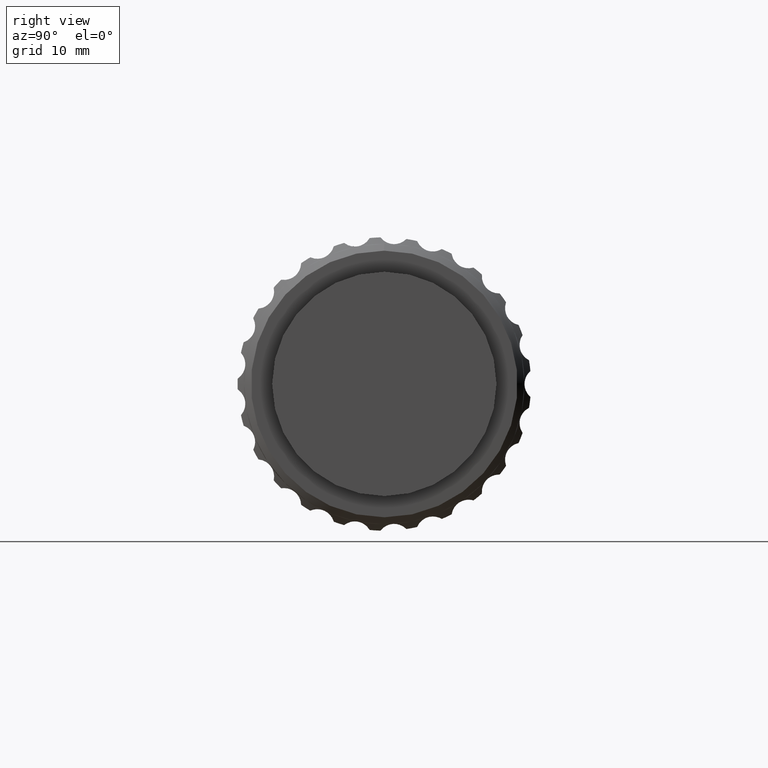
[diagram: clean part render]
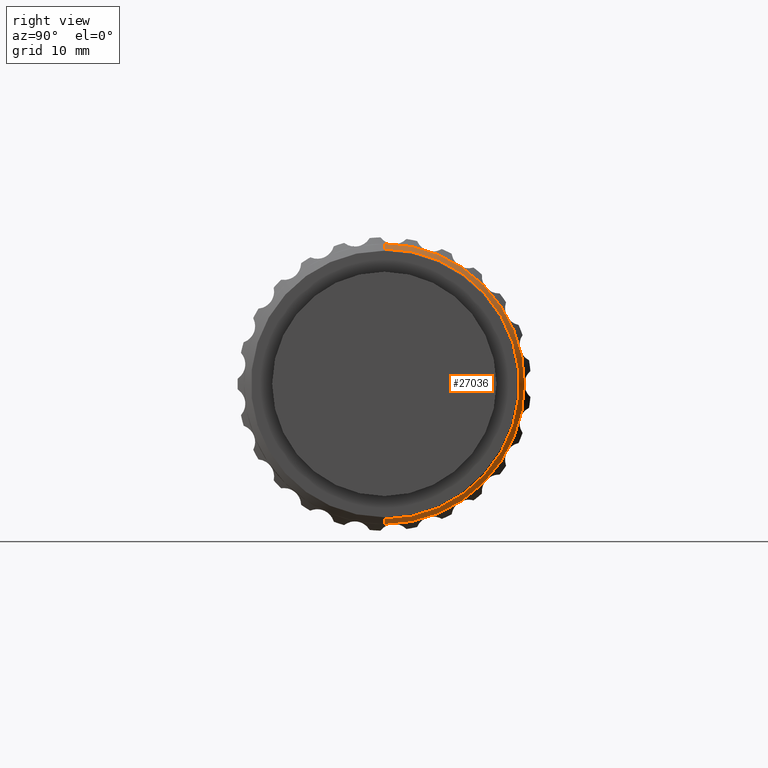
[diagram: same view with one face highlighted and labeled with its STEP entity id]
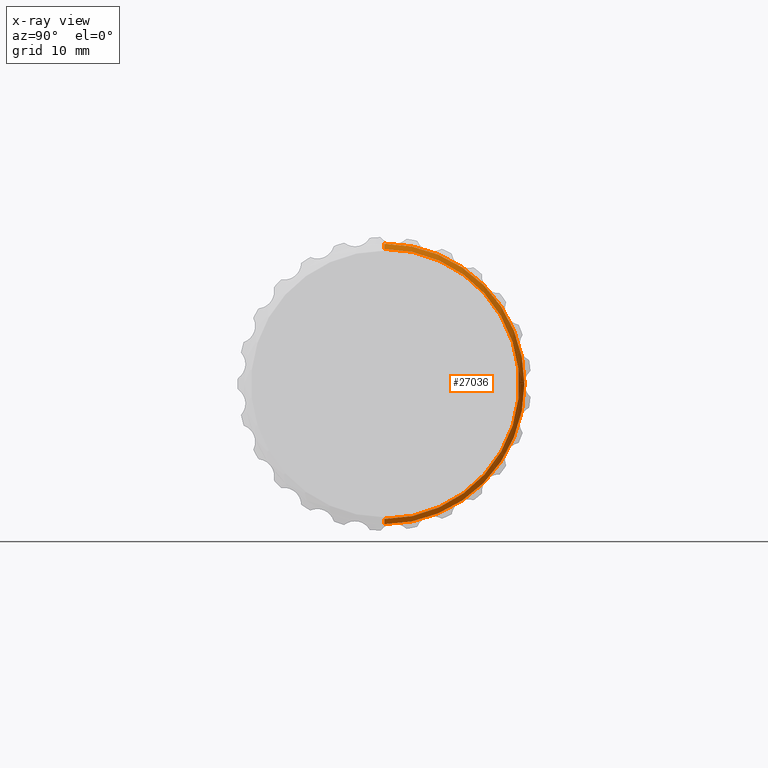
[diagram: x-ray of the same camera — body ghosted, the highlighted face saturated]
A machine part, right view. The second image highlights one B-rep face of the part: STEP entity #27036.
The next image is the same camera in x-ray: the body ghosted, the highlighted face saturated — about 0% of this face is hidden behind the body in this view.
In plain terms, the highlighted conical surface has half-angle 45 deg.
Its self-contained STEP definition (entity closure, byte-faithful):
#1356 = DIRECTION ( 'NONE',  ( 0.000000000000000000, 0.000000000000000000, 1.000000000000000000 ) ) ;
#4101 = DIRECTION ( 'NONE',  ( -0.7071067811865516806, 8.659560562354883554E-17, -0.7071067811865434649 ) ) ;
#5892 = VERTEX_POINT ( 'NONE', #14281 ) ;
#6068 = DIRECTION ( 'NONE',  ( -1.000000000000000000, -0.000000000000000000, -0.000000000000000000 ) ) ;
#9057 = LINE ( 'NONE', #50694, #27049 ) ;
#13379 = LINE ( 'NONE', #36041, #24397 ) ;
#13872 = VERTEX_POINT ( 'NONE', #15282 ) ;
#14281 = CARTESIAN_POINT ( 'NONE',  ( 62.54999999999998295, 0.000000000000000000, 16.25000000000000000 ) ) ;
#14939 = DIRECTION ( 'NONE',  ( -0.7071067811865516806, 0.000000000000000000, 0.7071067811865434649 ) ) ;
#15282 = CARTESIAN_POINT ( 'NONE',  ( 63.14999999999999858, 1.916572240665607987E-15, -15.65000000000000036 ) ) ;
#15589 = EDGE_CURVE ( 'NONE', #13872, #30799, #9057, .T. ) ;
#16060 = CARTESIAN_POINT ( 'NONE',  ( 62.54999999999998295, 1.990051048614449313E-15, -16.25000000000000000 ) ) ;
#17205 = EDGE_CURVE ( 'NONE', #21670, #5892, #13379, .T. ) ;
#17413 = AXIS2_PLACEMENT_3D ( 'NONE', #27450, #6068, #52394 ) ;
#19425 = EDGE_LOOP ( 'NONE', ( #25814, #29646, #29580, #21720 ) ) ;
#20057 = AXIS2_PLACEMENT_3D ( 'NONE', #44954, #31366, #23575 ) ;
#21670 = VERTEX_POINT ( 'NONE', #49162 ) ;
#21720 = ORIENTED_EDGE ( 'NONE', *, *, #17205, .F. ) ;
#23575 = DIRECTION ( 'NONE',  ( 0.000000000000000000, 0.000000000000000000, 1.000000000000000000 ) ) ;
#24397 = VECTOR ( 'NONE', #14939, 1000.000000000000000 ) ;
#25814 = ORIENTED_EDGE ( 'NONE', *, *, #42807, .T. ) ;
#26546 = EDGE_CURVE ( 'NONE', #5892, #30799, #36882, .T. ) ;
#27036 = ADVANCED_FACE ( 'NONE', ( #31339 ), #31600, .T. ) ;
#27049 = VECTOR ( 'NONE', #4101, 1000.000000000000000 ) ;
#27450 = CARTESIAN_POINT ( 'NONE',  ( 62.54999999999998295, 0.000000000000000000, 0.000000000000000000 ) ) ;
#29580 = ORIENTED_EDGE ( 'NONE', *, *, #26546, .F. ) ;
#29646 = ORIENTED_EDGE ( 'NONE', *, *, #15589, .T. ) ;
#30799 = VERTEX_POINT ( 'NONE', #16060 ) ;
#31220 = CIRCLE ( 'NONE', #33022, 15.65000000000000036 ) ;
#31339 = FACE_OUTER_BOUND ( 'NONE', #19425, .T. ) ;
#31366 = DIRECTION ( 'NONE',  ( -1.000000000000000000, -0.000000000000000000, -0.000000000000000000 ) ) ;
#31600 = CONICAL_SURFACE ( 'NONE', #17413, 16.25000000000000000, 0.7853981633974425058 ) ;
#33022 = AXIS2_PLACEMENT_3D ( 'NONE', #47424, #35483, #1356 ) ;
#35483 = DIRECTION ( 'NONE',  ( -1.000000000000000000, -0.000000000000000000, -0.000000000000000000 ) ) ;
#36041 = CARTESIAN_POINT ( 'NONE',  ( 62.54999999999998295, 0.000000000000000000, 16.25000000000000000 ) ) ;
#36882 = CIRCLE ( 'NONE', #20057, 16.25000000000000000 ) ;
#42807 = EDGE_CURVE ( 'NONE', #21670, #13872, #31220, .T. ) ;
#44954 = CARTESIAN_POINT ( 'NONE',  ( 62.54999999999998295, 0.000000000000000000, 0.000000000000000000 ) ) ;
#47424 = CARTESIAN_POINT ( 'NONE',  ( 63.14999999999999858, 0.000000000000000000, 0.000000000000000000 ) ) ;
#49162 = CARTESIAN_POINT ( 'NONE',  ( 63.14999999999999858, 0.000000000000000000, 15.65000000000000036 ) ) ;
#50694 = CARTESIAN_POINT ( 'NONE',  ( 62.54999999999998295, 1.990051048614449313E-15, -16.25000000000000000 ) ) ;
#52394 = DIRECTION ( 'NONE',  ( 0.000000000000000000, 0.000000000000000000, 1.000000000000000000 ) ) ;